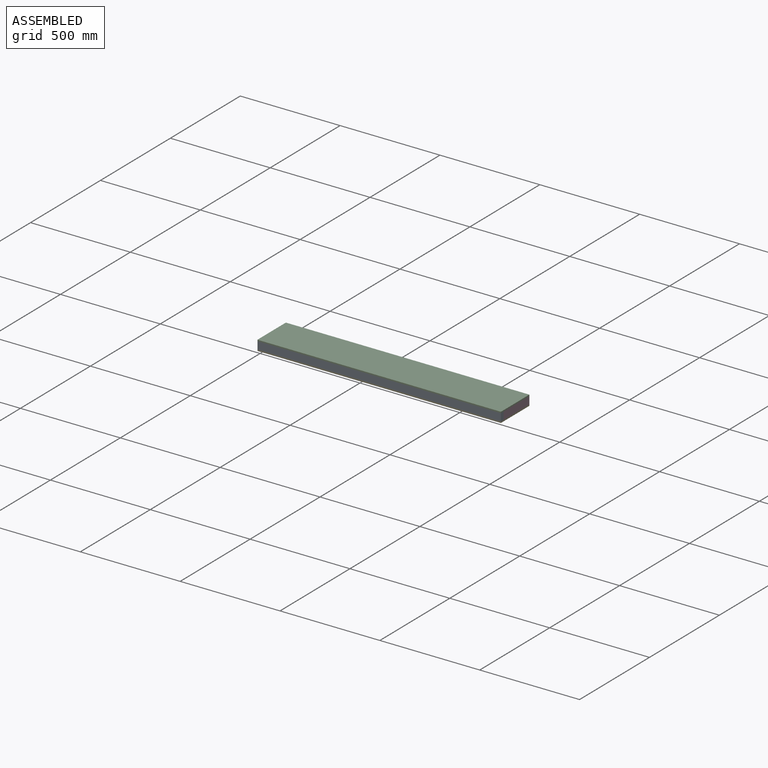
[diagram: assembled view]
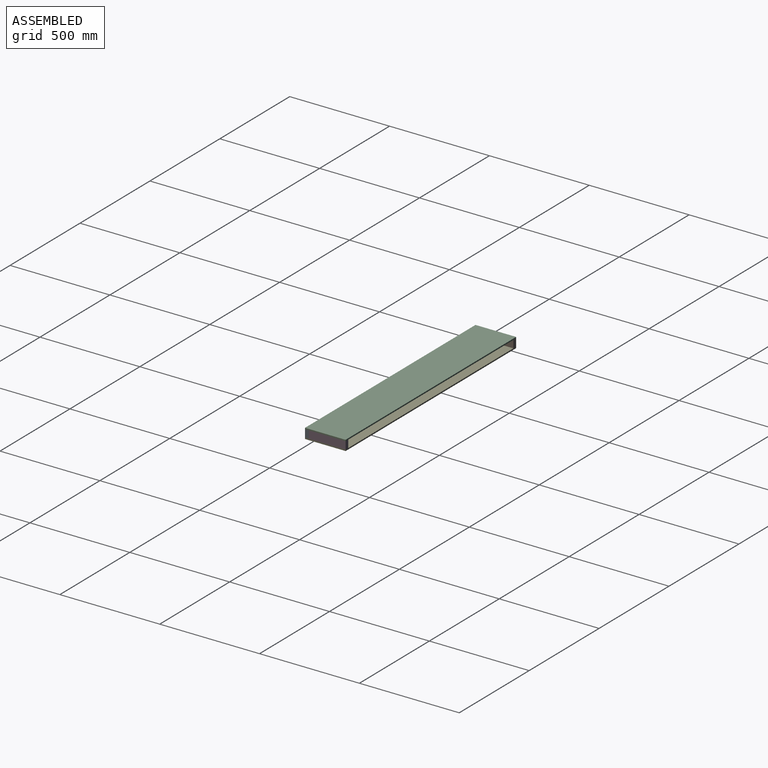
[diagram: assembled view, second angle]
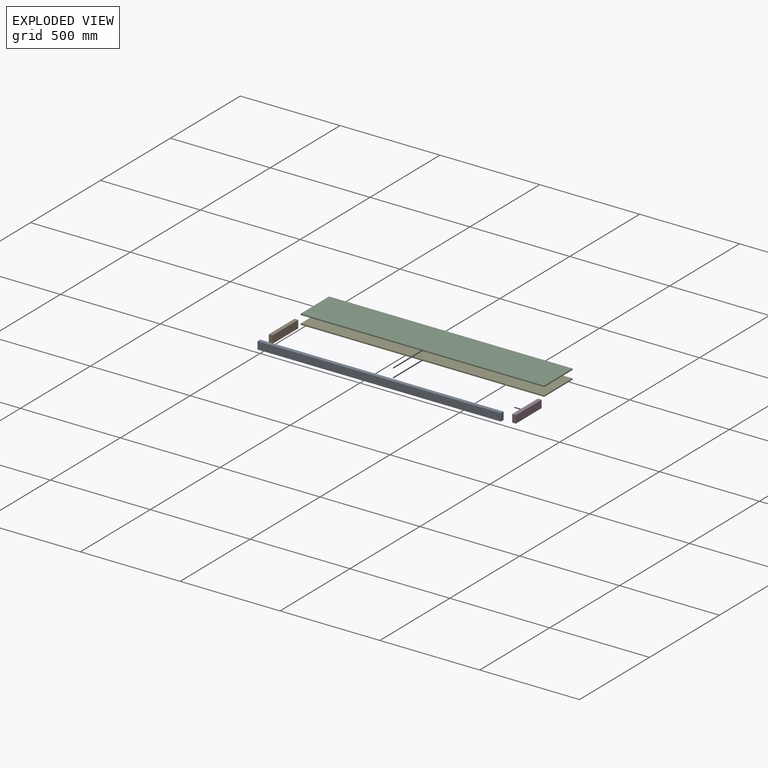
[diagram: exploded view]
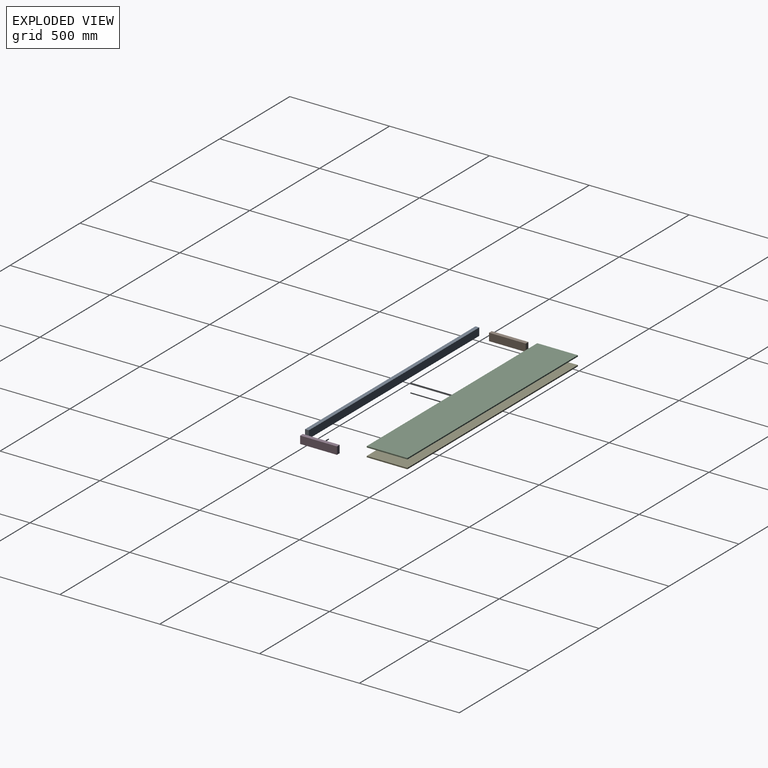
[diagram: exploded view, second angle]
ASSEMBLY  parts=5 mates=4
PART A: 6 faces, bbox 1219.2x19.1x38.1 mm
  f0: plane 1219.2x19.05mm, normal (0,0,1), area 23225.8mm2, adj f1,f3,f4,f5
  f1: plane 38.1x19.05mm, normal (-1,0,0), area 725.8mm2, adj f0,f2,f4,f5
  f2: plane 1219.2x19.05mm, normal (0,0,-1), area 23225.8mm2, adj f1,f3,f4,f5
  f3: plane 38.1x19.05mm, normal (1,0,0), area 725.8mm2, adj f0,f2,f4,f5
  f4: plane 1219.2x38.1mm, normal (0,-1,0), area 46451.5mm2, adj f0,f1,f2,f3
  f5: plane 1219.2x38.1mm, normal (0,1,0), area 46451.5mm2, adj f0,f1,f2,f3
PART B: 6 faces, bbox 19.1x184.2x38.1 mm
  f0: plane 38.1x19.05mm, normal (0,1,0), area 725.8mm2, adj f1,f3,f4,f5
  f1: plane 184.15x19.05mm, normal (0,0,1), area 3508.1mm2, adj f0,f2,f4,f5
  f2: plane 38.1x19.05mm, normal (0,-1,0), area 725.8mm2, adj f1,f3,f4,f5
  f3: plane 184.15x19.05mm, normal (0,0,-1), area 3508.1mm2, adj f0,f2,f4,f5
  f4: plane 184.15x38.1mm, normal (1,0,0), area 7016.1mm2, adj f0,f1,f2,f3
  f5: plane 184.15x38.1mm, normal (-1,0,0), area 7016.1mm2, adj f0,f1,f2,f3
PART C: 6 faces, bbox 1219.2x203.2x6.4 mm
  f0: plane 1219.2x6.35mm, normal (0,1,0), area 7741.9mm2, adj f1,f3,f4,f5
  f1: plane 203.2x6.35mm, normal (-1,0,0), area 1290.3mm2, adj f0,f2,f4,f5
  f2: plane 1219.2x6.35mm, normal (0,-1,0), area 7741.9mm2, adj f1,f3,f4,f5
  f3: plane 203.2x6.35mm, normal (1,0,0), area 1290.3mm2, adj f0,f2,f4,f5
  f4: plane 1219.2x203.2mm, normal (0,0,1), area 247741.4mm2, adj f0,f1,f2,f3
  f5: plane 1219.2x203.2mm, normal (0,0,-1), area 247741.4mm2, adj f0,f1,f2,f3
PART D: same geometry as B
PART E: same geometry as C
PLACE A at identity fixed
PLACE B t=(0,184.15,0)mm
PLACE C t=(0,-19.05,38.1)mm
PLACE D t=(1200.15,184.15,0)mm
PLACE E t=(0,-19.05,-6.35)mm
MATE fastened A.f4 <-> E.f2  axis (0,-1,0) through (609.6,-19.05,0)mm
MATE fastened A.f3 <-> D.f4  axis (1,0,0) through (1219.2,0,19.05)mm
MATE fastened A.f5 <-> B.f2  axis (0,1,0) through (0,0,19.05)mm
MATE fastened A.f4 <-> C.f2  axis (0,-1,0) through (609.6,-19.05,38.1)mm
